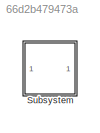
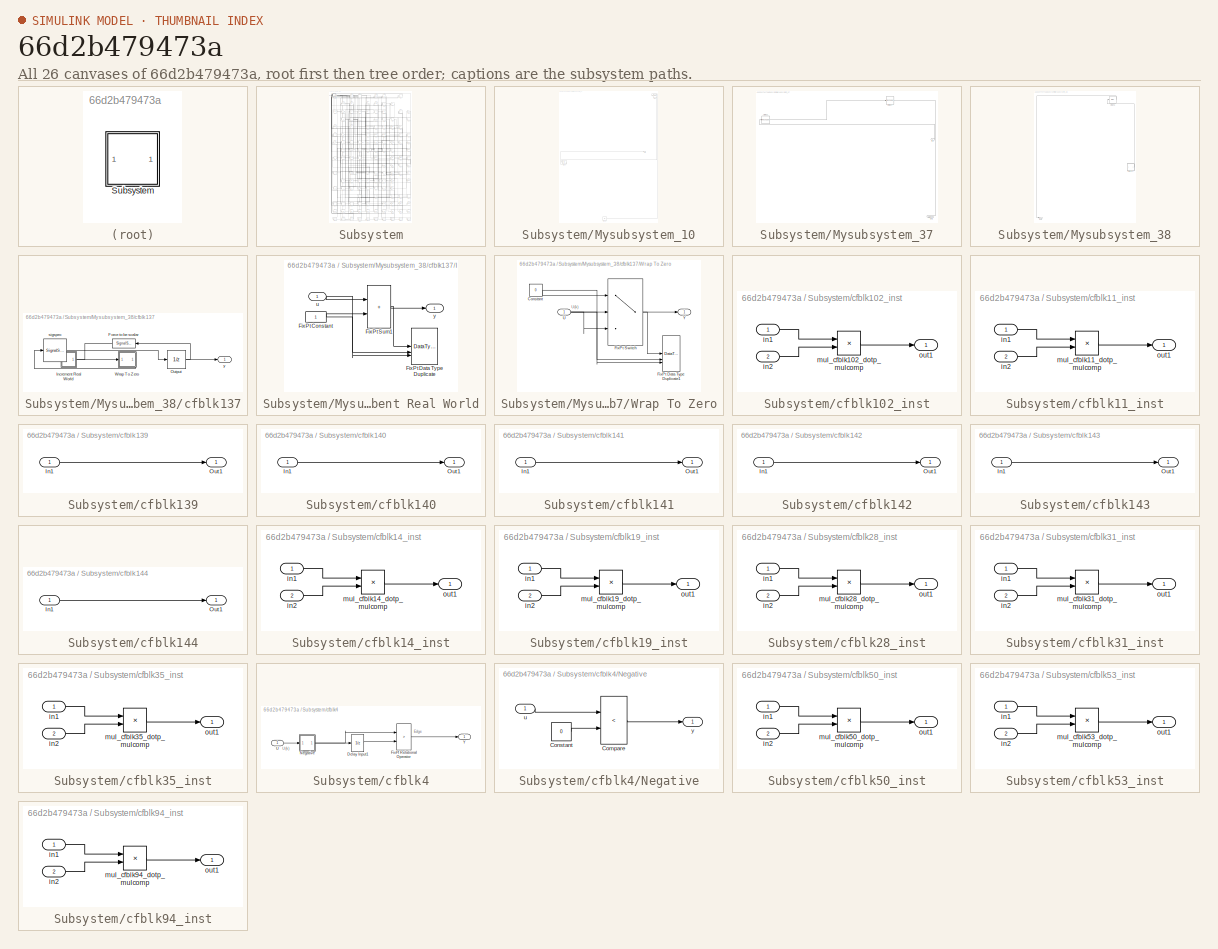
[diagram: thumbnail index - all 26 canvases of the model, root first then tree order]
MODEL slx_66d2b479473a
KIND model
CONFIG AbsTol = auto
CONFIG EnableMultiTasking = off
CONFIG FixedStep = auto
CONFIG MaxStep = auto
CONFIG MinStep = auto
CONFIG RelTol = 1e-3
CONFIG SampleTimeConstraint = Unconstrained
CONFIG SolverName = VariableStepAuto
CONFIG StartTime = 0.0
CONFIG StopTime = 10.0
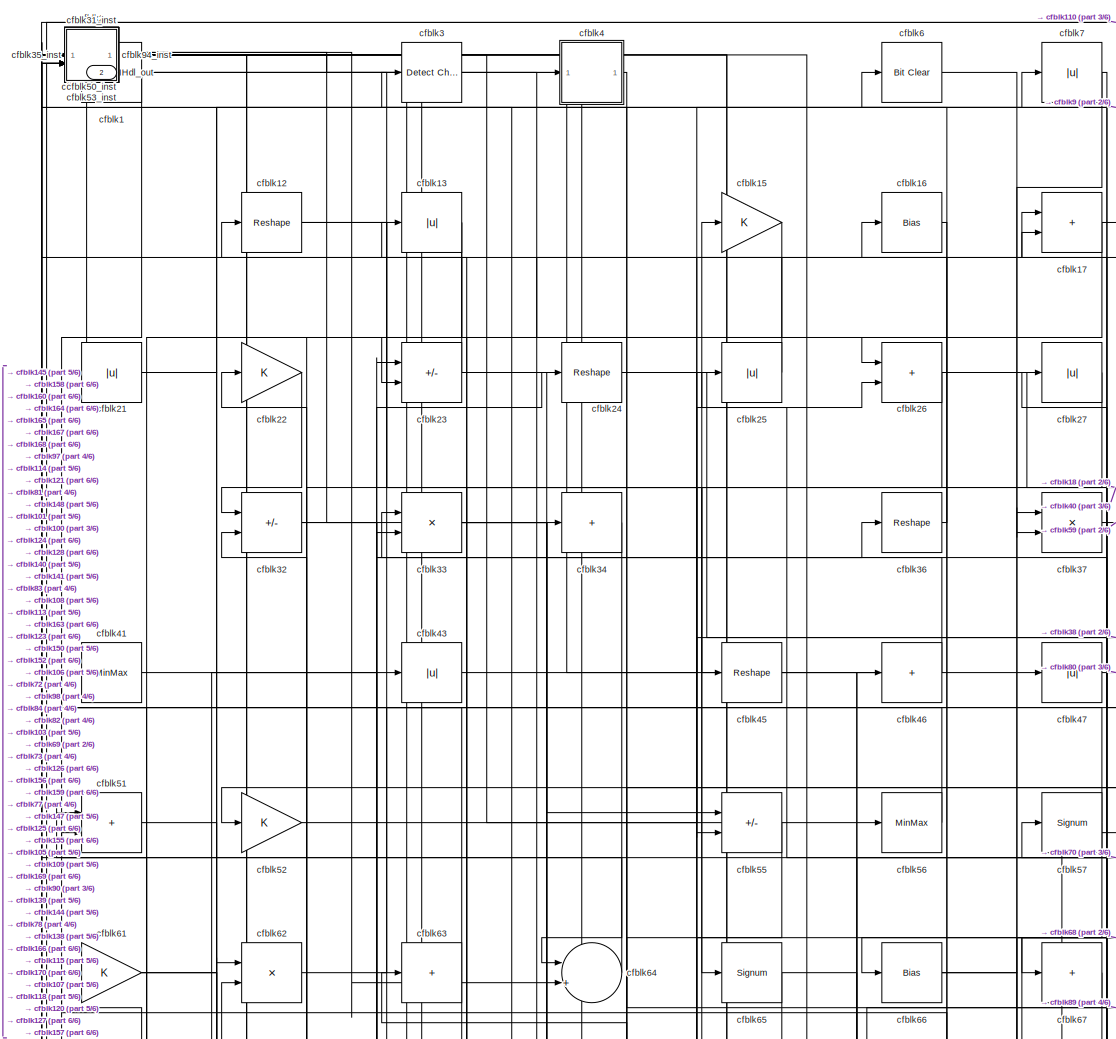
[diagram: Subsystem - part 1/6, top center region]
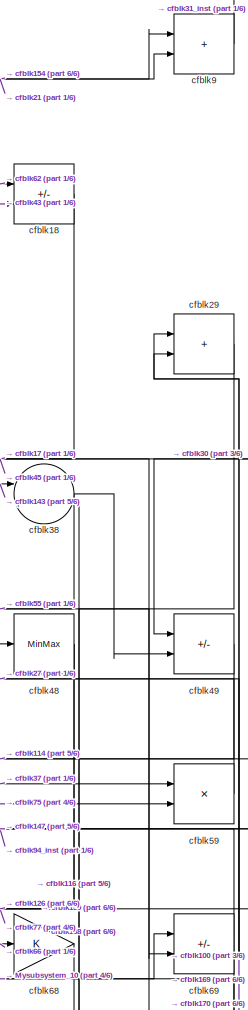
[diagram: Subsystem - part 2/6, top right region]
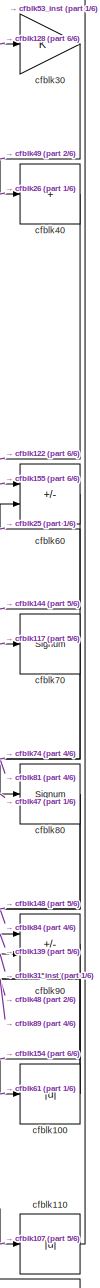
[diagram: Subsystem - part 3/6, middle right region]
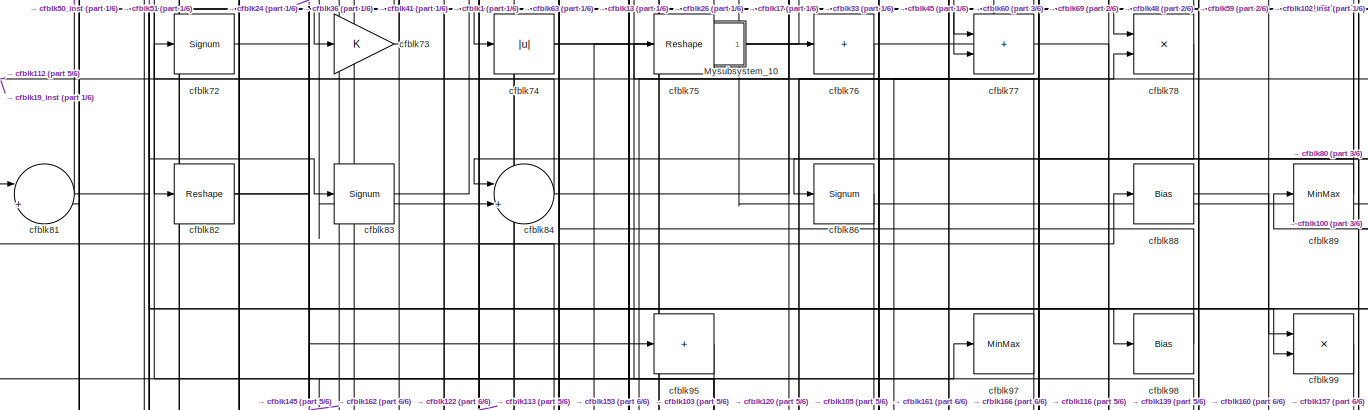
[diagram: Subsystem - part 4/6, full width, middle band]
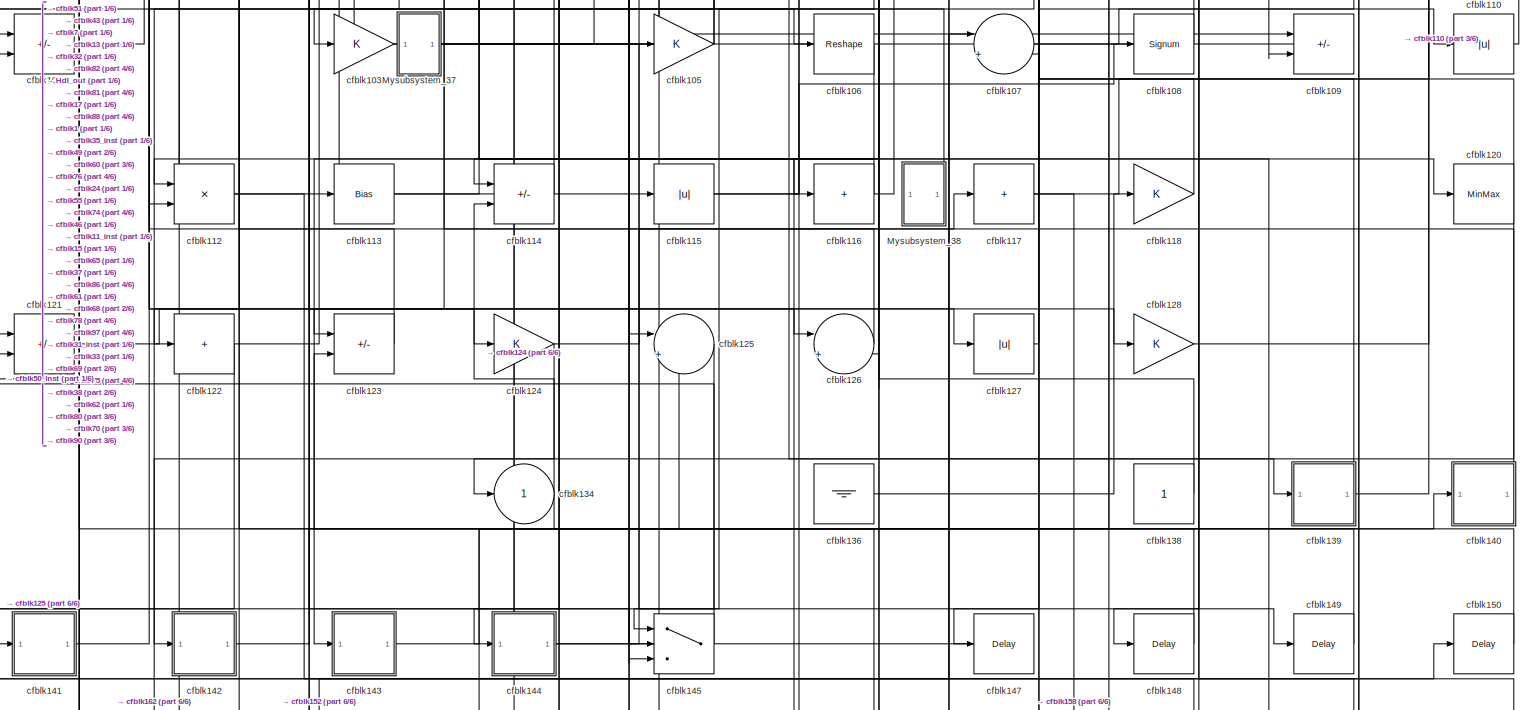
[diagram: Subsystem - part 5/6, full width, bottom band]
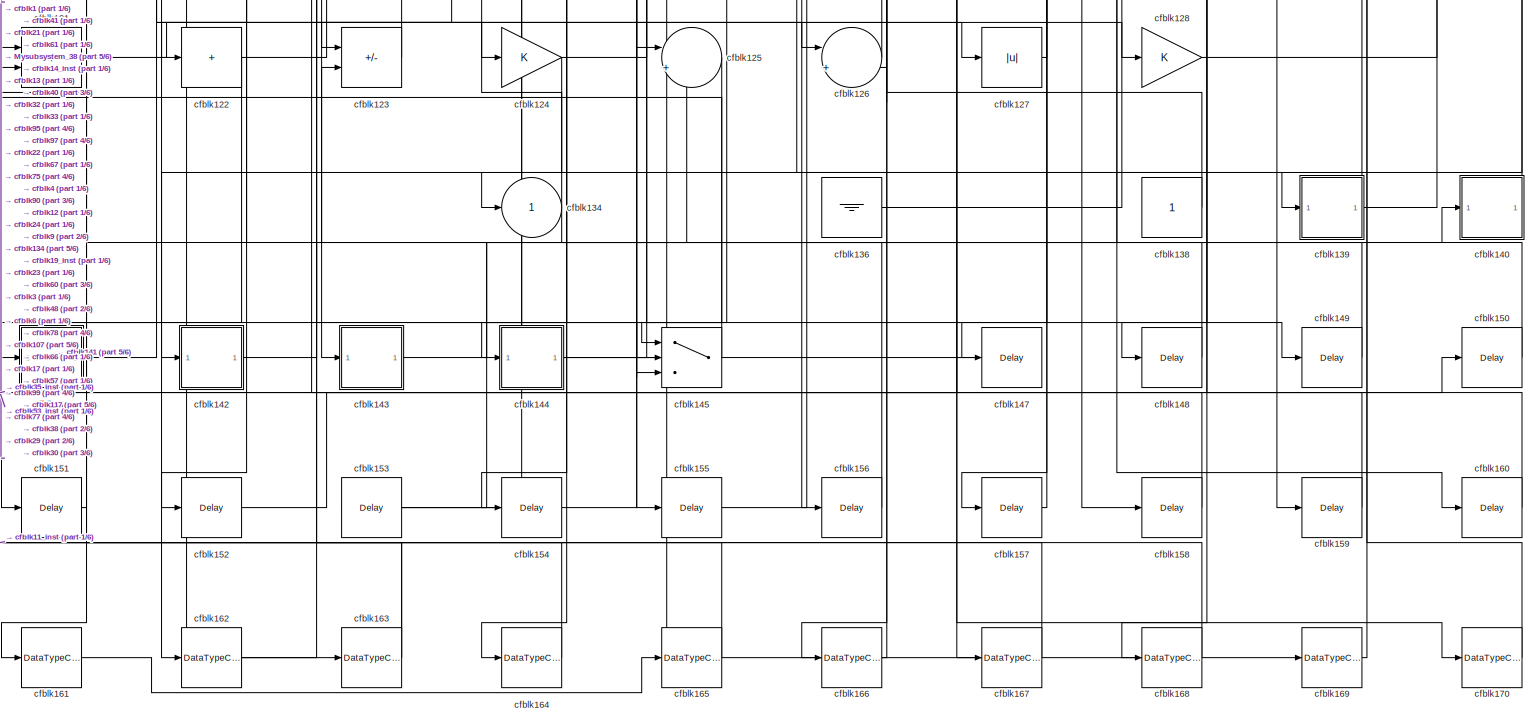
[diagram: Subsystem - part 6/6, full width, bottom band]
BLOCK [SubSystem] Subsystem
BLOCK [Outport] Subsystem/Hdl_out
  OutDataTypeStr = uint8
  Port = 2
  SampleTime = 1
BLOCK [SubSystem] Subsystem/Mysubsystem_10
BLOCK [Outport] Subsystem/Mysubsystem_10/Out2
  SampleTime = 1
BLOCK [Signum] Subsystem/Mysubsystem_10/cfblk10
BLOCK [Ground] Subsystem/Mysubsystem_10/cfblk135
BLOCK [Bias] Subsystem/Mysubsystem_10/cfblk71
  Bias = 0.0
  SaturateOnIntegerOverflow = off
BLOCK [SubSystem] Subsystem/Mysubsystem_37
BLOCK [Inport] Subsystem/Mysubsystem_37/In1
  OutDataTypeStr = uint8
  PortDimensions = 1
  SampleTime = 1
BLOCK [Outport] Subsystem/Mysubsystem_37/Out1
  SampleTime = 1
BLOCK [Reshape] Subsystem/Mysubsystem_37/cfblk87
BLOCK [Reshape] Subsystem/Mysubsystem_37/cfblk91
BLOCK [SubSystem] Subsystem/Mysubsystem_38
BLOCK [Outport] Subsystem/Mysubsystem_38/Out1
  SampleTime = 1
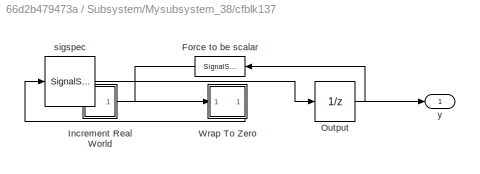
BLOCK [SubSystem] Subsystem/Mysubsystem_38/cfblk137
BLOCK [SignalSpecification] Subsystem/Mysubsystem_38/cfblk137/Force to be scalar
  Dimensions = 1
  DisableCoverage = on
BLOCK [SubSystem] Subsystem/Mysubsystem_38/cfblk137/Increment Real World
BLOCK [Constant] Subsystem/Mysubsystem_38/cfblk137/Increment Real World/FixPt Constant
  DisableCoverage = on
  OutDataTypeStr = Inherit: Inherit via back propagation
  SampleTime = -1
BLOCK [DataTypeDuplicate] Subsystem/Mysubsystem_38/cfblk137/Increment Real World/FixPt Data Type Duplicate
  DisableCoverage = on
  NumInputPorts = 3
BLOCK [Sum] Subsystem/Mysubsystem_38/cfblk137/Increment Real World/FixPt Sum1
  IconShape = rectangular
  InputSameDT = on
  LockScale = on
  OutDataTypeStr = Inherit: Inherit via back propagation
BLOCK [Inport] Subsystem/Mysubsystem_38/cfblk137/Increment Real World/u
  OutDataTypeStr = uint8
  SampleTime = 1
BLOCK [Outport] Subsystem/Mysubsystem_38/cfblk137/Increment Real World/y
  SampleTime = 1
BLOCK [UnitDelay] Subsystem/Mysubsystem_38/cfblk137/Output
  HasFrameUpgradeWarning = on
  InitialCondition = 0.0
  SampleTime = tsamp
BLOCK [SubSystem] Subsystem/Mysubsystem_38/cfblk137/Wrap To Zero
BLOCK [Constant] Subsystem/Mysubsystem_38/cfblk137/Wrap To Zero/Constant
  DisableCoverage = on
  OutDataTypeStr = Inherit: Inherit via back propagation
  SampleTime = -1
  Value = 0
BLOCK [DataTypeDuplicate] Subsystem/Mysubsystem_38/cfblk137/Wrap To Zero/FixPt Data Type Duplicate1
  DisableCoverage = on
  NumInputPorts = 3
BLOCK [Switch] Subsystem/Mysubsystem_38/cfblk137/Wrap To Zero/FixPt Switch
  Criteria = u2 > Threshold
  InputSameDT = off
  OutDataTypeStr = Inherit: Inherit via back propagation
  SaturateOnIntegerOverflow = off
  Threshold = Threshold
  ZeroCross = off
BLOCK [Inport] Subsystem/Mysubsystem_38/cfblk137/Wrap To Zero/U
  OutDataTypeStr = uint8
  SampleTime = 1
BLOCK [Outport] Subsystem/Mysubsystem_38/cfblk137/Wrap To Zero/Y
  SampleTime = 1
BLOCK [SignalSpecification] Subsystem/Mysubsystem_38/cfblk137/sigspec
  Dimensions = 1
  OutDataTypeStr = uint8
BLOCK [Outport] Subsystem/Mysubsystem_38/cfblk137/y
  SampleTime = 1
BLOCK [Bias] Subsystem/Mysubsystem_38/cfblk96
  Bias = 0.0
  SaturateOnIntegerOverflow = off
BLOCK [Reference] Subsystem/cfblk1  REF=simulink/Logic and Bit
Operations/Detect
Increase
  LibrarySourceBlock = hdlsllib/Logic and Bit\nOperations/Detect\nIncrease
  SourceBlock = simulink/Logic and Bit\nOperations/Detect\nIncrease
  SourceType = Detect Increase
BLOCK [Abs] Subsystem/cfblk100
  OutDataTypeStr = uint8
  SaturateOnIntegerOverflow = off
BLOCK [Sum] Subsystem/cfblk101
  IconShape = rectangular
  Inputs = +-
  OutDataTypeStr = uint8
BLOCK [SubSystem] Subsystem/cfblk102_inst
BLOCK [Inport] Subsystem/cfblk102_inst/in1
  OutDataTypeStr = uint8
  SampleTime = 1
BLOCK [Inport] Subsystem/cfblk102_inst/in2
  OutDataTypeStr = uint8
  Port = 2
  SampleTime = 1
BLOCK [Product] Subsystem/cfblk102_inst/mul_cfblk102_dotp_mulcomp
  Inputs = **
  OutDataTypeStr = uint8
  SampleTime = 1
BLOCK [Outport] Subsystem/cfblk102_inst/out1
  OutDataTypeStr = uint8
  SampleTime = 1
BLOCK [Gain] Subsystem/cfblk103
  OutDataTypeStr = uint8
BLOCK [Gain] Subsystem/cfblk105
  OutDataTypeStr = uint8
BLOCK [Reshape] Subsystem/cfblk106
BLOCK [Sum] Subsystem/cfblk107
  Inputs = |++
  OutDataTypeStr = uint8
BLOCK [Signum] Subsystem/cfblk108
BLOCK [Sum] Subsystem/cfblk109
  IconShape = rectangular
  Inputs = +-
  OutDataTypeStr = uint8
BLOCK [Abs] Subsystem/cfblk110
  OutDataTypeStr = uint8
  SaturateOnIntegerOverflow = off
BLOCK [Product] Subsystem/cfblk112
  Inputs = */
  OutDataTypeStr = uint8
  RndMeth = Zero
  SaturateOnIntegerOverflow = on
BLOCK [Bias] Subsystem/cfblk113
  Bias = 0.0
  SaturateOnIntegerOverflow = off
BLOCK [Sum] Subsystem/cfblk114
  IconShape = rectangular
  Inputs = +-
  OutDataTypeStr = uint8
BLOCK [Abs] Subsystem/cfblk115
  OutDataTypeStr = uint8
  SaturateOnIntegerOverflow = off
BLOCK [Sum] Subsystem/cfblk116
  IconShape = rectangular
  Inputs = +
  OutDataTypeStr = uint8
BLOCK [Sum] Subsystem/cfblk117
  IconShape = rectangular
  Inputs = +
  OutDataTypeStr = uint8
BLOCK [Gain] Subsystem/cfblk118
  OutDataTypeStr = uint8
BLOCK [SubSystem] Subsystem/cfblk11_inst
BLOCK [Inport] Subsystem/cfblk11_inst/in1
  OutDataTypeStr = uint8
  SampleTime = 1
BLOCK [Inport] Subsystem/cfblk11_inst/in2
  OutDataTypeStr = uint8
  Port = 2
  SampleTime = 1
BLOCK [Product] Subsystem/cfblk11_inst/mul_cfblk11_dotp_mulcomp
  Inputs = **
  OutDataTypeStr = uint8
  SampleTime = 1
BLOCK [Outport] Subsystem/cfblk11_inst/out1
  OutDataTypeStr = uint8
  SampleTime = 1
BLOCK [Reshape] Subsystem/cfblk12
BLOCK [MinMax] Subsystem/cfblk120
  OutDataTypeStr = uint8
BLOCK [Sum] Subsystem/cfblk121
  IconShape = rectangular
  Inputs = +-
  OutDataTypeStr = uint8
BLOCK [Sum] Subsystem/cfblk122
  IconShape = rectangular
  Inputs = +
  OutDataTypeStr = uint8
BLOCK [Sum] Subsystem/cfblk123
  IconShape = rectangular
  Inputs = +-
  OutDataTypeStr = uint8
BLOCK [Gain] Subsystem/cfblk124
  OutDataTypeStr = uint8
BLOCK [Sum] Subsystem/cfblk125
  Inputs = |++
  OutDataTypeStr = uint8
BLOCK [Sum] Subsystem/cfblk126
  Inputs = |++
  OutDataTypeStr = uint8
BLOCK [Abs] Subsystem/cfblk127
  OutDataTypeStr = uint8
  SaturateOnIntegerOverflow = off
BLOCK [Gain] Subsystem/cfblk128
  OutDataTypeStr = uint8
BLOCK [Abs] Subsystem/cfblk13
  OutDataTypeStr = uint8
  SaturateOnIntegerOverflow = off
BLOCK [Outport] Subsystem/cfblk134
  OutDataTypeStr = uint8
  SampleTime = 1
  VectorParamsAs1DForOutWhenUnconnected = off
BLOCK [Ground] Subsystem/cfblk136
BLOCK [Constant] Subsystem/cfblk138
  OutDataTypeStr = uint8
  SampleTime = -1
BLOCK [SubSystem] Subsystem/cfblk139
BLOCK [Inport] Subsystem/cfblk139/In1
  OutDataTypeStr = uint8
  PortDimensions = 1
  SampleTime = 1
BLOCK [Outport] Subsystem/cfblk139/Out1
  SampleTime = 1
BLOCK [SubSystem] Subsystem/cfblk140
BLOCK [Inport] Subsystem/cfblk140/In1
  OutDataTypeStr = uint8
  PortDimensions = 1
  SampleTime = 1
BLOCK [Outport] Subsystem/cfblk140/Out1
  SampleTime = 1
BLOCK [SubSystem] Subsystem/cfblk141
BLOCK [Inport] Subsystem/cfblk141/In1
  OutDataTypeStr = uint8
  PortDimensions = 1
  SampleTime = 1
BLOCK [Outport] Subsystem/cfblk141/Out1
  SampleTime = 1
BLOCK [SubSystem] Subsystem/cfblk142
BLOCK [Inport] Subsystem/cfblk142/In1
  OutDataTypeStr = uint8
  PortDimensions = 1
  SampleTime = 1
BLOCK [Outport] Subsystem/cfblk142/Out1
  SampleTime = 1
BLOCK [SubSystem] Subsystem/cfblk143
BLOCK [Inport] Subsystem/cfblk143/In1
  OutDataTypeStr = uint8
  PortDimensions = 1
  SampleTime = 1
BLOCK [Outport] Subsystem/cfblk143/Out1
  SampleTime = 1
BLOCK [SubSystem] Subsystem/cfblk144
BLOCK [Inport] Subsystem/cfblk144/In1
  OutDataTypeStr = uint8
  PortDimensions = 1
  SampleTime = 1
BLOCK [Outport] Subsystem/cfblk144/Out1
  SampleTime = 1
BLOCK [Switch] Subsystem/cfblk145
  InputSameDT = off
  OutDataTypeStr = uint8
  SaturateOnIntegerOverflow = off
BLOCK [Delay] Subsystem/cfblk147
  InputPortMap = u0
  SampleTime = 1
BLOCK [Delay] Subsystem/cfblk148
  InputPortMap = u0
  SampleTime = 1
BLOCK [Delay] Subsystem/cfblk149
  InputPortMap = u0
  SampleTime = 1
BLOCK [SubSystem] Subsystem/cfblk14_inst
BLOCK [Inport] Subsystem/cfblk14_inst/in1
  OutDataTypeStr = uint8
  SampleTime = 1
BLOCK [Inport] Subsystem/cfblk14_inst/in2
  OutDataTypeStr = uint8
  Port = 2
  SampleTime = 1
BLOCK [Product] Subsystem/cfblk14_inst/mul_cfblk14_dotp_mulcomp
  Inputs = **
  OutDataTypeStr = uint8
  SampleTime = 1
BLOCK [Outport] Subsystem/cfblk14_inst/out1
  OutDataTypeStr = uint8
  SampleTime = 1
BLOCK [Gain] Subsystem/cfblk15
  OutDataTypeStr = uint8
BLOCK [Delay] Subsystem/cfblk150
  InputPortMap = u0
  SampleTime = 1
BLOCK [Delay] Subsystem/cfblk151
  InputPortMap = u0
  SampleTime = 1
BLOCK [Delay] Subsystem/cfblk152
  InputPortMap = u0
  SampleTime = 1
BLOCK [Delay] Subsystem/cfblk153
  InputPortMap = u0
  SampleTime = 1
BLOCK [Delay] Subsystem/cfblk154
  InputPortMap = u0
  SampleTime = 1
BLOCK [Delay] Subsystem/cfblk155
  InputPortMap = u0
  SampleTime = 1
BLOCK [Delay] Subsystem/cfblk156
  InputPortMap = u0
  SampleTime = 1
BLOCK [Delay] Subsystem/cfblk157
  InputPortMap = u0
  SampleTime = 1
BLOCK [Delay] Subsystem/cfblk158
  InputPortMap = u0
  SampleTime = 1
BLOCK [Delay] Subsystem/cfblk159
  InputPortMap = u0
  SampleTime = 1
BLOCK [Bias] Subsystem/cfblk16
  Bias = 0.0
  SaturateOnIntegerOverflow = off
BLOCK [Delay] Subsystem/cfblk160
  InputPortMap = u0
  SampleTime = 1
BLOCK [DataTypeConversion] Subsystem/cfblk161
  OutDataTypeStr = uint8
  RndMeth = Floor
  SaturateOnIntegerOverflow = off
BLOCK [DataTypeConversion] Subsystem/cfblk162
  OutDataTypeStr = uint8
  RndMeth = Floor
  SaturateOnIntegerOverflow = off
BLOCK [DataTypeConversion] Subsystem/cfblk163
  OutDataTypeStr = uint8
  RndMeth = Floor
  SaturateOnIntegerOverflow = off
BLOCK [DataTypeConversion] Subsystem/cfblk164
  OutDataTypeStr = uint8
  RndMeth = Floor
  SaturateOnIntegerOverflow = off
BLOCK [DataTypeConversion] Subsystem/cfblk165
  OutDataTypeStr = uint8
  RndMeth = Floor
  SaturateOnIntegerOverflow = off
BLOCK [DataTypeConversion] Subsystem/cfblk166
  OutDataTypeStr = uint8
  RndMeth = Floor
  SaturateOnIntegerOverflow = off
BLOCK [DataTypeConversion] Subsystem/cfblk167
  OutDataTypeStr = uint8
  RndMeth = Floor
  SaturateOnIntegerOverflow = off
BLOCK [DataTypeConversion] Subsystem/cfblk168
  OutDataTypeStr = uint8
  RndMeth = Floor
  SaturateOnIntegerOverflow = off
BLOCK [DataTypeConversion] Subsystem/cfblk169
  OutDataTypeStr = uint8
  RndMeth = Floor
  SaturateOnIntegerOverflow = off
BLOCK [Sum] Subsystem/cfblk17
  IconShape = rectangular
  OutDataTypeStr = uint8
BLOCK [DataTypeConversion] Subsystem/cfblk170
  OutDataTypeStr = uint8
  RndMeth = Floor
  SaturateOnIntegerOverflow = off
BLOCK [Sum] Subsystem/cfblk18
  IconShape = rectangular
  Inputs = +-
  OutDataTypeStr = uint8
BLOCK [SubSystem] Subsystem/cfblk19_inst
BLOCK [Inport] Subsystem/cfblk19_inst/in1
  OutDataTypeStr = uint8
  SampleTime = 1
BLOCK [Inport] Subsystem/cfblk19_inst/in2
  OutDataTypeStr = uint8
  Port = 2
  SampleTime = 1
BLOCK [Product] Subsystem/cfblk19_inst/mul_cfblk19_dotp_mulcomp
  Inputs = **
  OutDataTypeStr = uint8
  SampleTime = 1
BLOCK [Outport] Subsystem/cfblk19_inst/out1
  OutDataTypeStr = uint8
  SampleTime = 1
BLOCK [Constant] Subsystem/cfblk2
  OutDataTypeStr = uint8
  SampleTime = 1
  Value = 0
BLOCK [Abs] Subsystem/cfblk21
  OutDataTypeStr = uint8
  SaturateOnIntegerOverflow = off
BLOCK [Gain] Subsystem/cfblk22
  OutDataTypeStr = uint8
BLOCK [Sum] Subsystem/cfblk23
  IconShape = rectangular
  Inputs = +-
  OutDataTypeStr = uint8
BLOCK [Reshape] Subsystem/cfblk24
BLOCK [Abs] Subsystem/cfblk25
  OutDataTypeStr = uint8
  SaturateOnIntegerOverflow = off
BLOCK [Sum] Subsystem/cfblk26
  IconShape = rectangular
  OutDataTypeStr = uint8
BLOCK [Abs] Subsystem/cfblk27
  OutDataTypeStr = uint8
  SaturateOnIntegerOverflow = off
BLOCK [SubSystem] Subsystem/cfblk28_inst
BLOCK [Inport] Subsystem/cfblk28_inst/in1
  OutDataTypeStr = uint8
  SampleTime = 1
BLOCK [Inport] Subsystem/cfblk28_inst/in2
  OutDataTypeStr = uint8
  Port = 2
  SampleTime = 1
BLOCK [Product] Subsystem/cfblk28_inst/mul_cfblk28_dotp_mulcomp
  Inputs = **
  OutDataTypeStr = uint8
  SampleTime = 1
BLOCK [Outport] Subsystem/cfblk28_inst/out1
  OutDataTypeStr = uint8
  SampleTime = 1
BLOCK [Sum] Subsystem/cfblk29
  IconShape = rectangular
  OutDataTypeStr = uint8
BLOCK [Reference] Subsystem/cfblk3  REF=simulink/Logic and Bit
Operations/Detect
Change
  LibrarySourceBlock = hdlsllib/Logic and Bit\nOperations/Detect\nChange
  SourceBlock = simulink/Logic and Bit\nOperations/Detect\nChange
  SourceType = Detect Change
BLOCK [Gain] Subsystem/cfblk30
  OutDataTypeStr = uint8
BLOCK [SubSystem] Subsystem/cfblk31_inst
BLOCK [Inport] Subsystem/cfblk31_inst/in1
  OutDataTypeStr = uint8
  SampleTime = 1
BLOCK [Inport] Subsystem/cfblk31_inst/in2
  OutDataTypeStr = uint8
  Port = 2
  SampleTime = 1
BLOCK [Product] Subsystem/cfblk31_inst/mul_cfblk31_dotp_mulcomp
  Inputs = **
  OutDataTypeStr = uint8
  SampleTime = 1
BLOCK [Outport] Subsystem/cfblk31_inst/out1
  OutDataTypeStr = uint8
  SampleTime = 1
BLOCK [Sum] Subsystem/cfblk32
  IconShape = rectangular
  Inputs = +-
  OutDataTypeStr = uint8
BLOCK [Product] Subsystem/cfblk33
  Inputs = */
  OutDataTypeStr = uint8
  RndMeth = Zero
  SaturateOnIntegerOverflow = on
BLOCK [Sum] Subsystem/cfblk34
  IconShape = rectangular
  Inputs = +
  OutDataTypeStr = uint8
BLOCK [SubSystem] Subsystem/cfblk35_inst
BLOCK [Inport] Subsystem/cfblk35_inst/in1
  OutDataTypeStr = uint8
  SampleTime = 1
BLOCK [Inport] Subsystem/cfblk35_inst/in2
  OutDataTypeStr = uint8
  Port = 2
  SampleTime = 1
BLOCK [Product] Subsystem/cfblk35_inst/mul_cfblk35_dotp_mulcomp
  Inputs = **
  OutDataTypeStr = uint8
  SampleTime = 1
BLOCK [Outport] Subsystem/cfblk35_inst/out1
  OutDataTypeStr = uint8
  SampleTime = 1
BLOCK [Reshape] Subsystem/cfblk36
BLOCK [Product] Subsystem/cfblk37
  Inputs = */
  OutDataTypeStr = uint8
  RndMeth = Zero
  SaturateOnIntegerOverflow = on
BLOCK [Sum] Subsystem/cfblk38
  Inputs = |++
  OutDataTypeStr = uint8
BLOCK [SubSystem] Subsystem/cfblk4
BLOCK [UnitDelay] Subsystem/cfblk4/Delay Input1
  Description = Store in Global RAM
  DisableCoverage = on
  HasFrameUpgradeWarning = on
  InitialCondition = vinit
  SampleTime = -1
BLOCK [RelationalOperator] Subsystem/cfblk4/FixPt Relational Operator
  InputSameDT = off
  Operator = >
  OutDataTypeStr = fixdt(0, 8)
  ZeroCross = off
BLOCK [SubSystem] Subsystem/cfblk4/Negative
BLOCK [RelationalOperator] Subsystem/cfblk4/Negative/Compare
  Operator = <
  OutDataTypeStr = boolean
  ZeroCross = off
BLOCK [Constant] Subsystem/cfblk4/Negative/Constant
  DisableCoverage = on
  OutDataTypeStr = Inherit: Inherit via back propagation
  PreserveConstantTs = on
  SampleTime = -1
  Value = 0
BLOCK [Inport] Subsystem/cfblk4/Negative/u
  OutDataTypeStr = uint8
  SampleTime = 1
BLOCK [Outport] Subsystem/cfblk4/Negative/y
  SampleTime = 1
BLOCK [Inport] Subsystem/cfblk4/U
  OutDataTypeStr = uint8
  SampleTime = 1
BLOCK [Outport] Subsystem/cfblk4/Y
  SampleTime = 1
BLOCK [Sum] Subsystem/cfblk40
  IconShape = rectangular
  Inputs = +
  OutDataTypeStr = uint8
BLOCK [MinMax] Subsystem/cfblk41
  OutDataTypeStr = uint8
BLOCK [Abs] Subsystem/cfblk43
  OutDataTypeStr = uint8
  SaturateOnIntegerOverflow = off
BLOCK [Reshape] Subsystem/cfblk45
BLOCK [Sum] Subsystem/cfblk46
  IconShape = rectangular
  Inputs = +
  OutDataTypeStr = uint8
BLOCK [Abs] Subsystem/cfblk47
  OutDataTypeStr = uint8
  SaturateOnIntegerOverflow = off
BLOCK [MinMax] Subsystem/cfblk48
  OutDataTypeStr = uint8
BLOCK [Sum] Subsystem/cfblk49
  IconShape = rectangular
  Inputs = +-
  OutDataTypeStr = uint8
BLOCK [SubSystem] Subsystem/cfblk50_inst
BLOCK [Inport] Subsystem/cfblk50_inst/in1
  OutDataTypeStr = uint8
  SampleTime = 1
BLOCK [Inport] Subsystem/cfblk50_inst/in2
  OutDataTypeStr = uint8
  Port = 2
  SampleTime = 1
BLOCK [Product] Subsystem/cfblk50_inst/mul_cfblk50_dotp_mulcomp
  Inputs = **
  OutDataTypeStr = uint8
  SampleTime = 1
BLOCK [Outport] Subsystem/cfblk50_inst/out1
  OutDataTypeStr = uint8
  SampleTime = 1
BLOCK [Sum] Subsystem/cfblk51
  IconShape = rectangular
  OutDataTypeStr = uint8
BLOCK [Gain] Subsystem/cfblk52
  OutDataTypeStr = uint8
BLOCK [SubSystem] Subsystem/cfblk53_inst
BLOCK [Inport] Subsystem/cfblk53_inst/in1
  OutDataTypeStr = uint8
  SampleTime = 1
BLOCK [Inport] Subsystem/cfblk53_inst/in2
  OutDataTypeStr = uint8
  Port = 2
  SampleTime = 1
BLOCK [Product] Subsystem/cfblk53_inst/mul_cfblk53_dotp_mulcomp
  Inputs = **
  OutDataTypeStr = uint8
  SampleTime = 1
BLOCK [Outport] Subsystem/cfblk53_inst/out1
  OutDataTypeStr = uint8
  SampleTime = 1
BLOCK [Sum] Subsystem/cfblk55
  IconShape = rectangular
  Inputs = +-
  OutDataTypeStr = uint8
BLOCK [MinMax] Subsystem/cfblk56
  OutDataTypeStr = uint8
BLOCK [Signum] Subsystem/cfblk57
BLOCK [Product] Subsystem/cfblk59
  Inputs = */
  OutDataTypeStr = uint8
  RndMeth = Zero
  SaturateOnIntegerOverflow = on
BLOCK [Reference] Subsystem/cfblk6  REF=simulink/Logic and Bit
Operations/Bit Clear
  LibrarySourceBlock = hdlsllib/Logic and Bit\nOperations/Bit Clear
  SourceBlock = simulink/Logic and Bit\nOperations/Bit Clear
  SourceType = Bit Clear
BLOCK [Sum] Subsystem/cfblk60
  IconShape = rectangular
  Inputs = +-
  OutDataTypeStr = uint8
BLOCK [Gain] Subsystem/cfblk61
  OutDataTypeStr = uint8
BLOCK [Product] Subsystem/cfblk62
  Inputs = */
  OutDataTypeStr = uint8
  RndMeth = Zero
  SaturateOnIntegerOverflow = on
BLOCK [Sum] Subsystem/cfblk63
  IconShape = rectangular
  Inputs = +
  OutDataTypeStr = uint8
BLOCK [Sum] Subsystem/cfblk64
  Inputs = |++
  OutDataTypeStr = uint8
BLOCK [Signum] Subsystem/cfblk65
BLOCK [Bias] Subsystem/cfblk66
  Bias = 0.0
  SaturateOnIntegerOverflow = off
BLOCK [Sum] Subsystem/cfblk67
  IconShape = rectangular
  Inputs = +
  OutDataTypeStr = uint8
BLOCK [Gain] Subsystem/cfblk68
  OutDataTypeStr = uint8
BLOCK [Sum] Subsystem/cfblk69
  IconShape = rectangular
  Inputs = +-
  OutDataTypeStr = uint8
BLOCK [Abs] Subsystem/cfblk7
  OutDataTypeStr = uint8
  SaturateOnIntegerOverflow = off
BLOCK [Signum] Subsystem/cfblk70
BLOCK [Signum] Subsystem/cfblk72
BLOCK [Gain] Subsystem/cfblk73
  OutDataTypeStr = uint8
BLOCK [Abs] Subsystem/cfblk74
  OutDataTypeStr = uint8
  SaturateOnIntegerOverflow = off
BLOCK [Reshape] Subsystem/cfblk75
BLOCK [Sum] Subsystem/cfblk76
  IconShape = rectangular
  Inputs = +
  OutDataTypeStr = uint8
BLOCK [Sum] Subsystem/cfblk77
  IconShape = rectangular
  OutDataTypeStr = uint8
BLOCK [Product] Subsystem/cfblk78
  Inputs = */
  OutDataTypeStr = uint8
  RndMeth = Zero
  SaturateOnIntegerOverflow = on
BLOCK [Signum] Subsystem/cfblk80
BLOCK [Sum] Subsystem/cfblk81
  Inputs = |++
  OutDataTypeStr = uint8
BLOCK [Reshape] Subsystem/cfblk82
BLOCK [Signum] Subsystem/cfblk83
BLOCK [Sum] Subsystem/cfblk84
  Inputs = |++
  OutDataTypeStr = uint8
BLOCK [Signum] Subsystem/cfblk86
BLOCK [Bias] Subsystem/cfblk88
  Bias = 0.0
  SaturateOnIntegerOverflow = off
BLOCK [MinMax] Subsystem/cfblk89
  OutDataTypeStr = uint8
BLOCK [Sum] Subsystem/cfblk9
  IconShape = rectangular
  OutDataTypeStr = uint8
BLOCK [Sum] Subsystem/cfblk90
  IconShape = rectangular
  Inputs = +-
  OutDataTypeStr = uint8
BLOCK [SubSystem] Subsystem/cfblk94_inst
BLOCK [Inport] Subsystem/cfblk94_inst/in1
  OutDataTypeStr = uint8
  SampleTime = 1
BLOCK [Inport] Subsystem/cfblk94_inst/in2
  OutDataTypeStr = uint8
  Port = 2
  SampleTime = 1
BLOCK [Product] Subsystem/cfblk94_inst/mul_cfblk94_dotp_mulcomp
  Inputs = **
  OutDataTypeStr = uint8
  SampleTime = 1
BLOCK [Outport] Subsystem/cfblk94_inst/out1
  OutDataTypeStr = uint8
  SampleTime = 1
BLOCK [Sum] Subsystem/cfblk95
  IconShape = rectangular
  Inputs = +
  OutDataTypeStr = uint8
BLOCK [MinMax] Subsystem/cfblk97
  OutDataTypeStr = uint8
BLOCK [Bias] Subsystem/cfblk98
  Bias = 0.0
  SaturateOnIntegerOverflow = off
BLOCK [Product] Subsystem/cfblk99
  Inputs = */
  OutDataTypeStr = uint8
  RndMeth = Zero
  SaturateOnIntegerOverflow = on
ANNOTATION Subsystem/Mysubsystem_38/cfblk137/Wrap To Zero: U(k)
ANNOTATION Subsystem/cfblk4: Edge
ANNOTATION Subsystem/cfblk4: U(k)
LINE Subsystem/Mysubsystem_10/cfblk10:1 -> Subsystem/Mysubsystem_10/cfblk71:1
LINE Subsystem/Mysubsystem_10/cfblk135:1 -> Subsystem/Mysubsystem_10/cfblk10:1
LINE Subsystem/Mysubsystem_10/cfblk71:1 -> Subsystem/Mysubsystem_10/Out2:1
LINE Subsystem/Mysubsystem_10:1 -> Subsystem/cfblk69:1
LINE Subsystem/Mysubsystem_37/In1:1 -> Subsystem/Mysubsystem_37/cfblk91:1
LINE Subsystem/Mysubsystem_37/cfblk87:1 -> Subsystem/Mysubsystem_37/Out1:1
LINE Subsystem/Mysubsystem_37/cfblk91:1 -> Subsystem/Mysubsystem_37/cfblk87:1
LINE Subsystem/Mysubsystem_37:1 -> Subsystem/cfblk149:1
LINE Subsystem/Mysubsystem_38/cfblk137:1 -> Subsystem/Mysubsystem_38/cfblk96:1
LINE Subsystem/Mysubsystem_38/cfblk96:1 -> Subsystem/Mysubsystem_38/Out1:1
LINE Subsystem/Mysubsystem_38:1 -> Subsystem/cfblk162:1
NET Subsystem/cfblk100:1 -> Subsystem/cfblk48:1, Subsystem/cfblk89:1
LINE Subsystem/cfblk101:1 -> Subsystem/cfblk43:1
LINE Subsystem/cfblk102_inst/in1:1 -> Subsystem/cfblk102_inst/mul_cfblk102_dotp_mulcomp:1
LINE Subsystem/cfblk102_inst/in2:1 -> Subsystem/cfblk102_inst/mul_cfblk102_dotp_mulcomp:2
LINE Subsystem/cfblk102_inst/mul_cfblk102_dotp_mulcomp:1 -> Subsystem/cfblk102_inst/out1:1
LINE Subsystem/cfblk102_inst:1 -> Subsystem/cfblk47:1
LINE Subsystem/cfblk103:1 -> Subsystem/cfblk76:1
NET Subsystem/cfblk105:1 -> Subsystem/Hdl_out:1, Subsystem/cfblk15:1, Subsystem/cfblk81:1
LINE Subsystem/cfblk106:1 -> Subsystem/cfblk143:1
LINE Subsystem/cfblk107:1 -> Subsystem/cfblk110:1
LINE Subsystem/cfblk108:1 -> Subsystem/cfblk62:2
LINE Subsystem/cfblk109:1 -> Subsystem/Mysubsystem_37:1
LINE Subsystem/cfblk110:1 -> Subsystem/cfblk53_inst:1
LINE Subsystem/cfblk112:1 -> Subsystem/cfblk150:1
LINE Subsystem/cfblk113:1 -> Subsystem/cfblk88:1
LINE Subsystem/cfblk114:1 -> Subsystem/cfblk35_inst:2
NET Subsystem/cfblk115:1 -> Subsystem/cfblk108:1, Subsystem/cfblk37:1
NET Subsystem/cfblk116:1 -> Subsystem/cfblk112:1, Subsystem/cfblk78:2
NET Subsystem/cfblk117:1 -> Subsystem/cfblk158:1, Subsystem/cfblk70:1
LINE Subsystem/cfblk118:1 -> Subsystem/cfblk33:1
LINE Subsystem/cfblk11_inst/in1:1 -> Subsystem/cfblk11_inst/mul_cfblk11_dotp_mulcomp:1
LINE Subsystem/cfblk11_inst/in2:1 -> Subsystem/cfblk11_inst/mul_cfblk11_dotp_mulcomp:2
LINE Subsystem/cfblk11_inst/mul_cfblk11_dotp_mulcomp:1 -> Subsystem/cfblk11_inst/out1:1
LINE Subsystem/cfblk11_inst:1 -> Subsystem/cfblk109:1
NET Subsystem/cfblk120:1 -> Subsystem/cfblk142:1, Subsystem/cfblk31_inst:2
LINE Subsystem/cfblk121:1 -> Subsystem/cfblk127:1
NET Subsystem/cfblk122:1 -> Subsystem/cfblk151:1, Subsystem/cfblk97:1
LINE Subsystem/cfblk123:1 -> Subsystem/cfblk22:1
NET Subsystem/cfblk124:1 -> Subsystem/cfblk117:1, Subsystem/cfblk134:1
LINE Subsystem/cfblk125:1 -> Subsystem/cfblk141:1
LINE Subsystem/cfblk126:1 -> Subsystem/cfblk3:1
LINE Subsystem/cfblk127:1 -> Subsystem/cfblk57:1
LINE Subsystem/cfblk128:1 -> Subsystem/cfblk30:1
NET Subsystem/cfblk12:1 -> Subsystem/cfblk155:1, Subsystem/cfblk65:1
LINE Subsystem/cfblk136:1 -> Subsystem/cfblk118:1
LINE Subsystem/cfblk138:1 -> Subsystem/cfblk61:1
LINE Subsystem/cfblk139/In1:1 -> Subsystem/cfblk139/Out1:1
NET Subsystem/cfblk139:1 -> Subsystem/cfblk75:1, Subsystem/cfblk90:1
NET Subsystem/cfblk13:1 -> Subsystem/cfblk101:2, Subsystem/cfblk152:1
LINE Subsystem/cfblk140/In1:1 -> Subsystem/cfblk140/Out1:1
LINE Subsystem/cfblk140:1 -> Subsystem/cfblk62:1
LINE Subsystem/cfblk141/In1:1 -> Subsystem/cfblk141/Out1:1
LINE Subsystem/cfblk141:1 -> Subsystem/cfblk7:1
LINE Subsystem/cfblk142/In1:1 -> Subsystem/cfblk142/Out1:1
LINE Subsystem/cfblk142:1 -> Subsystem/cfblk140:1
LINE Subsystem/cfblk143/In1:1 -> Subsystem/cfblk143/Out1:1
LINE Subsystem/cfblk143:1 -> Subsystem/cfblk38:1
LINE Subsystem/cfblk144/In1:1 -> Subsystem/cfblk144/Out1:1
LINE Subsystem/cfblk144:1 -> Subsystem/cfblk46:1
LINE Subsystem/cfblk145:1 -> Subsystem/cfblk50_inst:2
LINE Subsystem/cfblk147:1 -> Subsystem/cfblk1:1
LINE Subsystem/cfblk148:1 -> Subsystem/cfblk51:2
LINE Subsystem/cfblk149:1 -> Subsystem/cfblk114:2
LINE Subsystem/cfblk14_inst/in1:1 -> Subsystem/cfblk14_inst/mul_cfblk14_dotp_mulcomp:1
LINE Subsystem/cfblk14_inst/in2:1 -> Subsystem/cfblk14_inst/mul_cfblk14_dotp_mulcomp:2
LINE Subsystem/cfblk14_inst/mul_cfblk14_dotp_mulcomp:1 -> Subsystem/cfblk14_inst/out1:1
LINE Subsystem/cfblk14_inst:1 -> Subsystem/cfblk163:1
LINE Subsystem/cfblk150:1 -> Subsystem/cfblk32:2
LINE Subsystem/cfblk151:1 -> Subsystem/cfblk121:2
LINE Subsystem/cfblk152:1 -> Subsystem/cfblk107:1
LINE Subsystem/cfblk153:1 -> Subsystem/cfblk125:2
LINE Subsystem/cfblk154:1 -> Subsystem/cfblk9:2
LINE Subsystem/cfblk155:1 -> Subsystem/cfblk60:1
LINE Subsystem/cfblk156:1 -> Subsystem/cfblk123:2
LINE Subsystem/cfblk157:1 -> Subsystem/cfblk17:1
LINE Subsystem/cfblk158:1 -> Subsystem/cfblk53_inst:2
LINE Subsystem/cfblk159:1 -> Subsystem/cfblk38:2
LINE Subsystem/cfblk15:1 -> Subsystem/cfblk23:2
LINE Subsystem/cfblk160:1 -> Subsystem/cfblk35_inst:1
LINE Subsystem/cfblk161:1 -> Subsystem/cfblk165:1
LINE Subsystem/cfblk162:1 -> Subsystem/cfblk95:1
NET Subsystem/cfblk163:1 -> Subsystem/cfblk33:2, Subsystem/cfblk41:1
LINE Subsystem/cfblk164:1 -> Subsystem/cfblk14_inst:1
LINE Subsystem/cfblk165:1 -> Subsystem/cfblk14_inst:2
LINE Subsystem/cfblk166:1 -> Subsystem/cfblk6:1
LINE Subsystem/cfblk167:1 -> Subsystem/cfblk11_inst:2
LINE Subsystem/cfblk168:1 -> Subsystem/cfblk11_inst:1
LINE Subsystem/cfblk169:1 -> Subsystem/cfblk29:1
LINE Subsystem/cfblk16:1 -> Subsystem/cfblk66:1
LINE Subsystem/cfblk170:1 -> Subsystem/cfblk29:2
NET Subsystem/cfblk17:1 -> Subsystem/cfblk103:1, Subsystem/cfblk69:2
LINE Subsystem/cfblk18:1 -> Subsystem/cfblk45:1
LINE Subsystem/cfblk19_inst/in1:1 -> Subsystem/cfblk19_inst/mul_cfblk19_dotp_mulcomp:1
LINE Subsystem/cfblk19_inst/in2:1 -> Subsystem/cfblk19_inst/mul_cfblk19_dotp_mulcomp:2
LINE Subsystem/cfblk19_inst/mul_cfblk19_dotp_mulcomp:1 -> Subsystem/cfblk19_inst/out1:1
LINE Subsystem/cfblk19_inst:1 -> Subsystem/cfblk169:1
NET Subsystem/cfblk1:1 -> Subsystem/cfblk121:1, Subsystem/cfblk84:2
NET Subsystem/cfblk21:1 -> Subsystem/cfblk124:1, Subsystem/cfblk9:1
LINE Subsystem/cfblk22:1 -> Subsystem/cfblk32:1
NET Subsystem/cfblk23:1 -> Subsystem/cfblk12:1, Subsystem/cfblk156:1
NET Subsystem/cfblk24:1 -> Subsystem/cfblk109:2, Subsystem/cfblk125:1
LINE Subsystem/cfblk25:1 -> Subsystem/cfblk28_inst:1
NET Subsystem/cfblk26:1 -> Subsystem/cfblk40:1, Subsystem/cfblk73:1
LINE Subsystem/cfblk27:1 -> Subsystem/cfblk52:1
LINE Subsystem/cfblk28_inst/in1:1 -> Subsystem/cfblk28_inst/mul_cfblk28_dotp_mulcomp:1
LINE Subsystem/cfblk28_inst/in2:1 -> Subsystem/cfblk28_inst/mul_cfblk28_dotp_mulcomp:2
LINE Subsystem/cfblk28_inst/mul_cfblk28_dotp_mulcomp:1 -> Subsystem/cfblk28_inst/out1:1
LINE Subsystem/cfblk28_inst:1 -> Subsystem/cfblk56:1
LINE Subsystem/cfblk29:1 -> Subsystem/cfblk168:1
NET Subsystem/cfblk2:1 -> Subsystem/cfblk4:1, Subsystem/cfblk64:2
LINE Subsystem/cfblk30:1 -> Subsystem/cfblk49:1
LINE Subsystem/cfblk31_inst/in1:1 -> Subsystem/cfblk31_inst/mul_cfblk31_dotp_mulcomp:1
LINE Subsystem/cfblk31_inst/in2:1 -> Subsystem/cfblk31_inst/mul_cfblk31_dotp_mulcomp:2
LINE Subsystem/cfblk31_inst/mul_cfblk31_dotp_mulcomp:1 -> Subsystem/cfblk31_inst/out1:1
NET Subsystem/cfblk31_inst:1 -> Subsystem/cfblk28_inst:2, Subsystem/cfblk90:2
NET Subsystem/cfblk32:1 -> Subsystem/cfblk106:1, Subsystem/cfblk126:1
NET Subsystem/cfblk33:1 -> Subsystem/cfblk105:1, Subsystem/cfblk159:1, Subsystem/cfblk55:1, Subsystem/cfblk77:2
LINE Subsystem/cfblk34:1 -> Subsystem/cfblk64:1
LINE Subsystem/cfblk35_inst/in1:1 -> Subsystem/cfblk35_inst/mul_cfblk35_dotp_mulcomp:1
LINE Subsystem/cfblk35_inst/in2:1 -> Subsystem/cfblk35_inst/mul_cfblk35_dotp_mulcomp:2
LINE Subsystem/cfblk35_inst/mul_cfblk35_dotp_mulcomp:1 -> Subsystem/cfblk35_inst/out1:1
LINE Subsystem/cfblk35_inst:1 -> Subsystem/cfblk113:1
LINE Subsystem/cfblk36:1 -> Subsystem/cfblk16:1
LINE Subsystem/cfblk37:1 -> Subsystem/cfblk59:1
NET Subsystem/cfblk38:1 -> Subsystem/cfblk49:2, Subsystem/cfblk55:2
LINE Subsystem/cfblk3:1 -> Subsystem/cfblk26:1
LINE Subsystem/cfblk40:1 -> Subsystem/cfblk122:1
LINE Subsystem/cfblk41:1 -> Subsystem/cfblk98:1
LINE Subsystem/cfblk43:1 -> Subsystem/cfblk18:2
LINE Subsystem/cfblk45:1 -> Subsystem/cfblk78:1
LINE Subsystem/cfblk46:1 -> Subsystem/cfblk23:1
LINE Subsystem/cfblk47:1 -> Subsystem/cfblk80:1
NET Subsystem/cfblk48:1 -> Subsystem/cfblk126:2, Subsystem/cfblk77:1
LINE Subsystem/cfblk49:1 -> Subsystem/cfblk114:1
LINE Subsystem/cfblk4:1 -> Subsystem/cfblk164:1
LINE Subsystem/cfblk50_inst/in1:1 -> Subsystem/cfblk50_inst/mul_cfblk50_dotp_mulcomp:1
LINE Subsystem/cfblk50_inst/in2:1 -> Subsystem/cfblk50_inst/mul_cfblk50_dotp_mulcomp:2
LINE Subsystem/cfblk50_inst/mul_cfblk50_dotp_mulcomp:1 -> Subsystem/cfblk50_inst/out1:1
LINE Subsystem/cfblk50_inst:1 -> Subsystem/cfblk115:1
LINE Subsystem/cfblk51:1 -> Subsystem/cfblk83:1
LINE Subsystem/cfblk52:1 -> Subsystem/cfblk26:2
LINE Subsystem/cfblk53_inst/in1:1 -> Subsystem/cfblk53_inst/mul_cfblk53_dotp_mulcomp:1
LINE Subsystem/cfblk53_inst/in2:1 -> Subsystem/cfblk53_inst/mul_cfblk53_dotp_mulcomp:2
LINE Subsystem/cfblk53_inst/mul_cfblk53_dotp_mulcomp:1 -> Subsystem/cfblk53_inst/out1:1
LINE Subsystem/cfblk53_inst:1 -> Subsystem/cfblk34:1
LINE Subsystem/cfblk55:1 -> Subsystem/cfblk145:2
LINE Subsystem/cfblk56:1 -> Subsystem/cfblk102_inst:1
NET Subsystem/cfblk57:1 -> Subsystem/cfblk19_inst:2, Subsystem/cfblk67:1
LINE Subsystem/cfblk59:1 -> Subsystem/cfblk27:1
LINE Subsystem/cfblk60:1 -> Subsystem/cfblk144:1
NET Subsystem/cfblk61:1 -> Subsystem/cfblk100:1, Subsystem/cfblk128:1
LINE Subsystem/cfblk62:1 -> Subsystem/cfblk18:1
NET Subsystem/cfblk63:1 -> Subsystem/cfblk82:1, Subsystem/cfblk94_inst:2
LINE Subsystem/cfblk64:1 -> Subsystem/cfblk51:1
NET Subsystem/cfblk65:1 -> Subsystem/cfblk101:1, Subsystem/cfblk139:1
NET Subsystem/cfblk66:1 -> Subsystem/cfblk170:1, Subsystem/cfblk68:1
LINE Subsystem/cfblk67:1 -> Subsystem/cfblk123:1
LINE Subsystem/cfblk68:1 -> Subsystem/cfblk116:1
NET Subsystem/cfblk69:1 -> Subsystem/cfblk147:1, Subsystem/cfblk94_inst:1
LINE Subsystem/cfblk6:1 -> Subsystem/cfblk167:1
NET Subsystem/cfblk70:1 -> Subsystem/cfblk25:1, Subsystem/cfblk74:1, Subsystem/cfblk81:2
LINE Subsystem/cfblk72:1 -> Subsystem/cfblk36:1
LINE Subsystem/cfblk73:1 -> Subsystem/cfblk13:1
LINE Subsystem/cfblk74:1 -> Subsystem/cfblk120:1
NET Subsystem/cfblk75:1 -> Subsystem/cfblk153:1, Subsystem/cfblk59:2
LINE Subsystem/cfblk76:1 -> Subsystem/cfblk86:1
LINE Subsystem/cfblk77:1 -> Subsystem/cfblk160:1
LINE Subsystem/cfblk78:1 -> Subsystem/cfblk166:1
NET Subsystem/cfblk7:1 -> Subsystem/cfblk107:2, Subsystem/cfblk37:2
NET Subsystem/cfblk80:1 -> Subsystem/cfblk148:1, Subsystem/cfblk84:1
NET Subsystem/cfblk81:1 -> Subsystem/cfblk50_inst:1, Subsystem/cfblk99:2
NET Subsystem/cfblk82:1 -> Subsystem/cfblk145:3, Subsystem/cfblk24:1
LINE Subsystem/cfblk83:1 -> Subsystem/cfblk17:2
NET Subsystem/cfblk84:1 -> Subsystem/cfblk60:2, Subsystem/cfblk72:1
LINE Subsystem/cfblk86:1 -> Subsystem/cfblk145:1
LINE Subsystem/cfblk88:1 -> Subsystem/cfblk99:1
LINE Subsystem/cfblk89:1 -> Subsystem/cfblk102_inst:2
LINE Subsystem/cfblk90:1 -> Subsystem/cfblk154:1
LINE Subsystem/cfblk94_inst/in1:1 -> Subsystem/cfblk94_inst/mul_cfblk94_dotp_mulcomp:1
LINE Subsystem/cfblk94_inst/in2:1 -> Subsystem/cfblk94_inst/mul_cfblk94_dotp_mulcomp:2
LINE Subsystem/cfblk94_inst/mul_cfblk94_dotp_mulcomp:1 -> Subsystem/cfblk94_inst/out1:1
LINE Subsystem/cfblk94_inst:1 -> Subsystem/cfblk21:1
LINE Subsystem/cfblk95:1 -> Subsystem/cfblk161:1
NET Subsystem/cfblk97:1 -> Subsystem/cfblk112:2, Subsystem/cfblk19_inst:1
LINE Subsystem/cfblk98:1 -> Subsystem/cfblk63:1
LINE Subsystem/cfblk99:1 -> Subsystem/cfblk157:1
LINE Subsystem/cfblk9:1 -> Subsystem/cfblk31_inst:1
note: NET lines group one-source signal fan-out (src -> all destinations, sorted); 1:1 wires keep LINE
